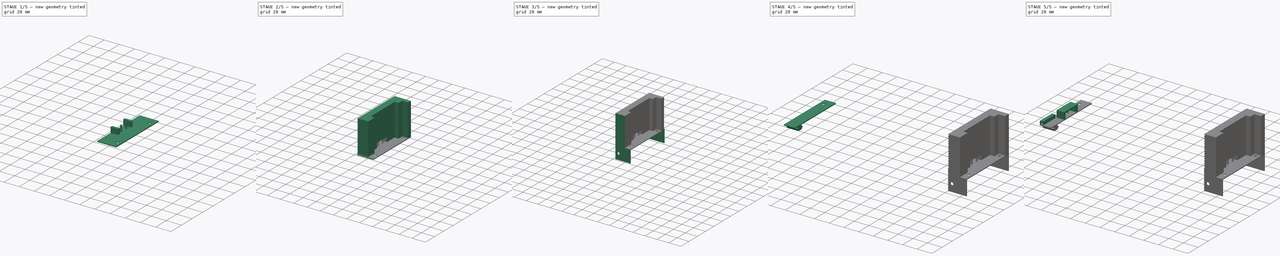
[diagram: build sequence overview — one tinted view per stage of 5, left to right]
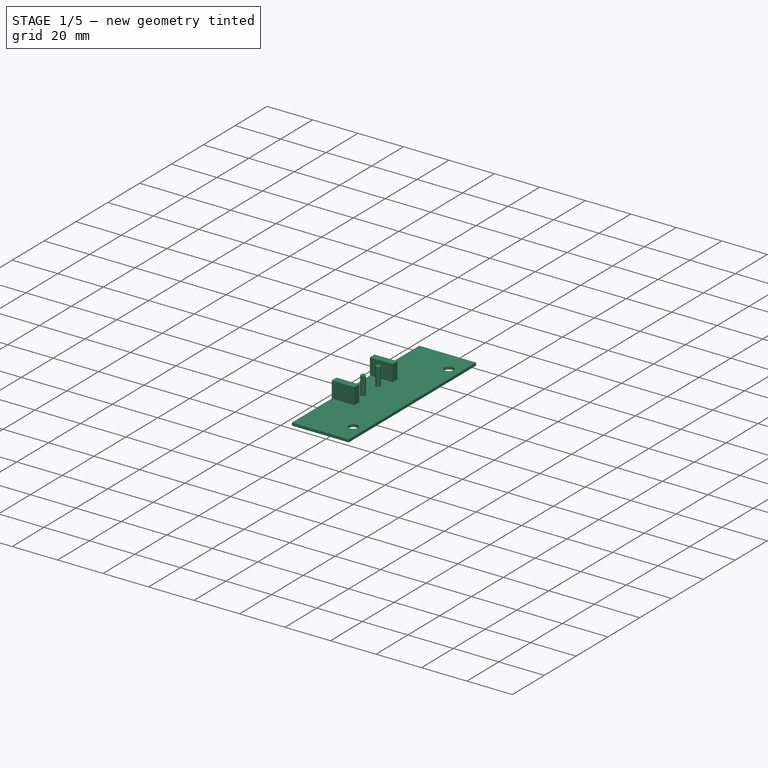
[diagram: stage 1 of 5 — iso view after this stage's code; geometry added in this stage tinted green]
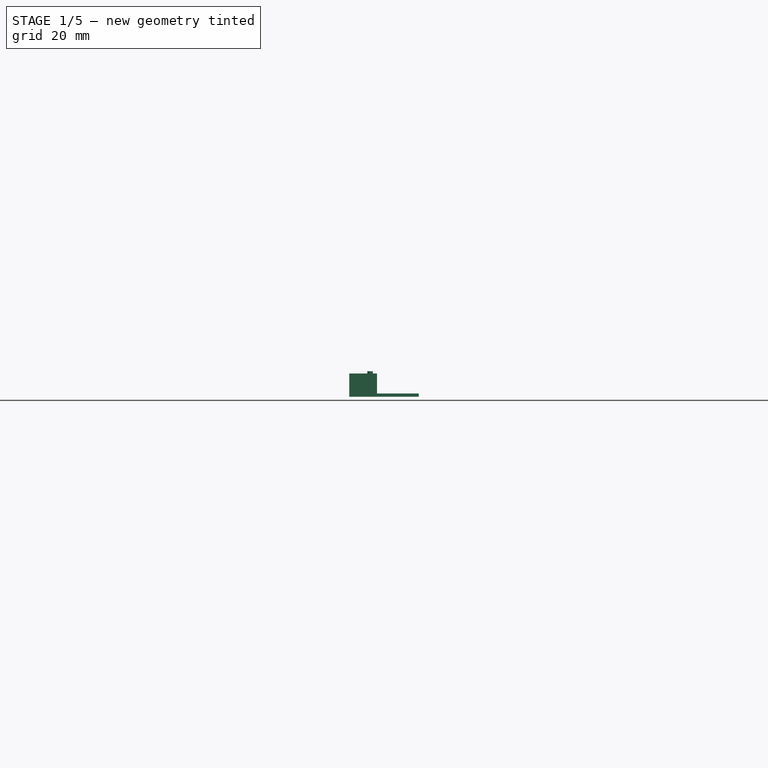
[diagram: stage 1 of 5 — front view after this stage's code; geometry added in this stage tinted green]
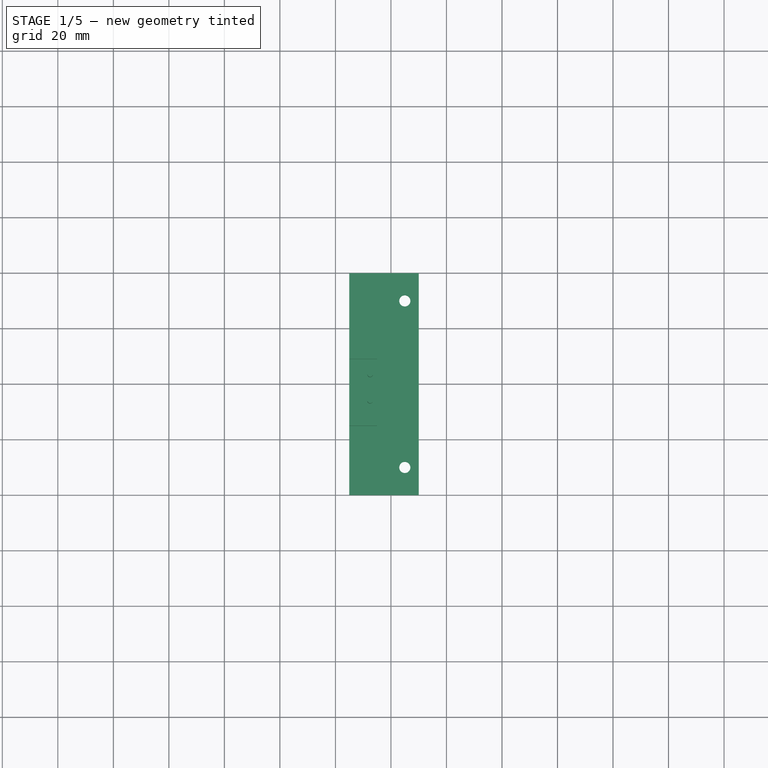
[diagram: stage 1 of 5 — top view after this stage's code; geometry added in this stage tinted green]
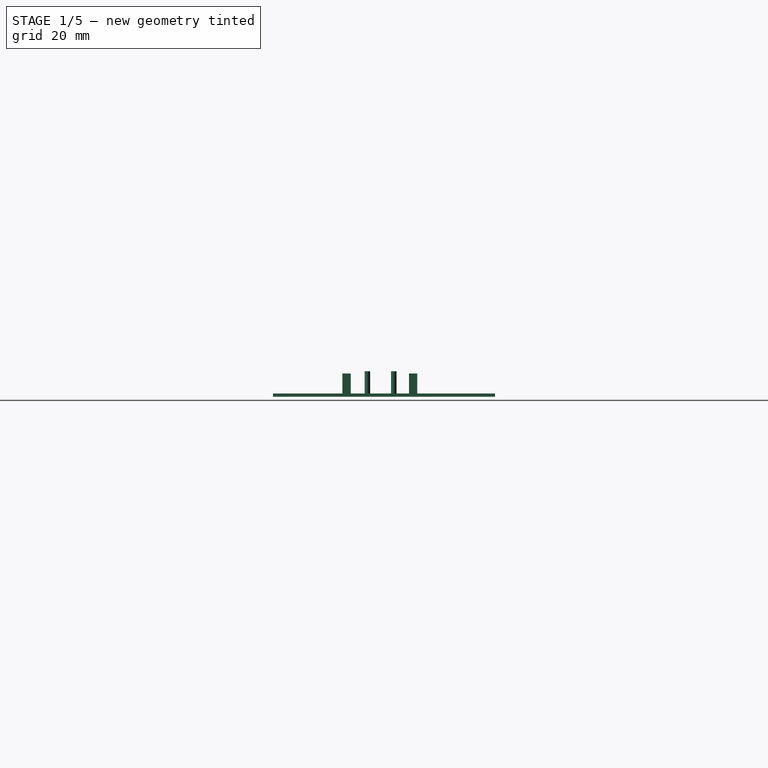
[diagram: stage 1 of 5 — right view after this stage's code; geometry added in this stage tinted green]
FCSTD DOCUMENT  (FreeCAD 1.0R39319 (Git))
Label: Limit Switch
License: All rights reserved
LicenseURL: https://en.wikipedia.org/wiki/All_rights_reserved
objects: Sketcher::SketchObject×17, PartDesign::Pad×15, Part::Feature×6, PartDesign::Pocket×4, PartDesign::Body×2, PartDesign::ShapeBinder×2, PartDesign::SubShapeBinder×1, PartDesign::Plane×1, PartDesign::Mirrored×1
note: 105 computed .brp shape members not serialized (recipe doc carries the construction recipe); baked Part::Feature solids carry a one-line shape summary decoded from their .brp

FEATURE [Part::Feature] Part__Feature003  label="Microswitch Omron SS-5GL-F v2 copy"
  Placement = pos=(235.5,48.5,1.5) rot=(0,0,-1;4.71239rad)
  shape: bbox 18.45 x 19.88 x 6.4 mm, 66 faces (baked)
FEATURE [Part::Feature] Part__Feature004  label="Slider T-Nut for 2020 - M5 v1 copy"
  Placement = pos=(250,75,-5.5) rot=(0.57735,-0.57735,-0.57735;2.0944rad)
  shape: bbox 10.01 x 10.01 x 5.013 mm, 31 faces (baked)
FEATURE [Sketcher::SketchObject] Sketch005
  ArcFitTolerance = 1e-06
  AttachmentOffset = pos=(0,0,250) rot=(0,0,1;0rad)
  AttachmentSupport = -> [YZ_Plane001]
  FullyConstrained = true
  MakeInternals = false
  MapMode = 5
  Placement = pos=(250,0,0) rot=(0.57735,0.57735,0.57735;2.0944rad)
  sketch-geometry (4):
    g0: LineSegment StartX=0 StartY=0 StartZ=0 EndX=0 EndY=1.2 EndZ=0
    g1: LineSegment StartX=0 StartY=1.2 StartZ=0 EndX=80 EndY=1.2 EndZ=0
    g2: LineSegment StartX=80 StartY=1.2 StartZ=0 EndX=80 EndY=0 EndZ=0
    g3: LineSegment StartX=80 StartY=0 StartZ=0 EndX=0 EndY=0 EndZ=0
  constraints (11):
    c: Coincident(g-1,g0)
    c: PointOnObject(g0,g-2)
    c: Coincident(g0,g1)
    c: Horizontal(g1)
    c: Coincident(g1,g2)
    c: PointOnObject(g2,g-1)
    c: Coincident(g2,g3)
    c: Coincident(g3,g0)
    c: Vertical(g2)
    c: DistanceY(g0,g0) = 1.2
    c: DistanceX(g1,g1) = 80
FEATURE [PartDesign::Pad] Pad003
  Direction = (1,0,0)
  Length = 25
  Length2 = 10
  Placement = pos=(0,0,0) rot=(1,1,1;2.0944rad)
  Profile = -> Sketch005
  ReferenceAxis = -> Sketch005 [N_Axis]
  Refine = true
  Reversed = true
  Suppressed = false
  Type = 0
FEATURE [Part::Feature] Part__Feature005  label="Slider T-Nut for 2020 - M5 v1 copy001"
  Placement = pos=(250,15,-5.5) rot=(0.57735,-0.57735,-0.57735;2.0944rad)
  shape: bbox 10.01 x 10.01 x 5.013 mm, 31 faces (baked)
FEATURE [Sketcher::SketchObject] Sketch006
  ArcFitTolerance = 1e-06
  AttachmentSupport = -> [Pad003]
  ExternalGeometry = -> [Pad003]
  FullyConstrained = true
  MakeInternals = false
  MapMode = 5
  Placement = pos=(-1e-16,4e-16,1.2) rot=(0,0,-1;1.5708rad)
  sketch-geometry (2):
    g0: Circle CenterX=-70 CenterY=245 CenterZ=0 NormalX=0 NormalY=0 NormalZ=1 AngleXU=0 Radius=2
    g1: Circle CenterX=-10 CenterY=245 CenterZ=0 NormalX=0 NormalY=0 NormalZ=1 AngleXU=0 Radius=2
  constraints (6):
    c: Diameter(g0) = 4
    c: Diameter(g1) = 4
    c: DistanceX(g-3,g0) = 10
    c: DistanceY(g0,g-3) = 5
    c: DistanceX(g1,g-1) = 10
    c: DistanceY(g1,g-4) = 5
FEATURE [PartDesign::Pocket] Pocket001
  BaseFeature = -> Pad003
  Direction = (0,0,-1)
  Length = 5
  Length2 = 5
  Placement = pos=(0,0,0) rot=(1,1,1;2.0944rad)
  Profile = -> Sketch006
  ReferenceAxis = -> Sketch006 [N_Axis]
  Refine = true
  Suppressed = false
  Type = 1
FEATURE [Sketcher::SketchObject] Sketch007
  ArcFitTolerance = 1e-06
  AttachmentSupport = -> [Pocket001]
  ExternalGeometry = -> [Pocket001]
  FullyConstrained = true
  MakeInternals = false
  MapMode = 5
  Placement = pos=(-3e-16,5e-16,1.2) rot=(0,0,-1;1.5708rad)
  sketch-geometry (2):
    g0: Circle CenterX=-43.5 CenterY=232.5 CenterZ=0 NormalX=0 NormalY=0 NormalZ=1 AngleXU=0 Radius=1
    g1: Circle CenterX=-34 CenterY=232.5 CenterZ=0 NormalX=0 NormalY=0 NormalZ=1 AngleXU=0 Radius=1
  constraints (6):
    c: Diameter(g0) = 2
    c: Diameter(g1) = 2
    c: Horizontal(g0,g1)
    c: DistanceX(g-3,g0) = 36.5
    c: DistanceX(g0,g1) = 9.5
    c: DistanceY(g-4,g0) = 7.5
FEATURE [PartDesign::Pad] Pad004
  BaseFeature = -> Pocket001
  Direction = (0,0,1)
  Length = 8
  Length2 = 10
  Placement = pos=(0,0,0) rot=(1,1,1;2.0944rad)
  Profile = -> Sketch007
  ReferenceAxis = -> Sketch007 [N_Axis]
  Refine = true
  Suppressed = false
  Type = 0
FEATURE [PartDesign::Body] Body  label="Limit Switch Holder"
  AllowCompound = false
  Group = -> [Sketch,Binder,Pad,Sketch001,Pocket,Sketch002,Sketch003,Pad001,Sketch004,Pad002,Sketch008,Pad005,Sketch009,Pad006]
  Origin = -> Origin
  Tip = -> Pad006
FEATURE [Sketcher::SketchObject] Sketch010
  ArcFitTolerance = 1e-06
  AttachmentSupport = -> [Pad004]
  ExternalGeometry = -> [Pad004]
  FullyConstrained = true
  MakeInternals = false
  MapMode = 5
  Placement = pos=(-4e-16,7e-16,1.2) rot=(0,0,-1;1.5708rad)
  sketch-geometry (8):
    g0: LineSegment StartX=-49 StartY=225 StartZ=0 EndX=-49 EndY=235 EndZ=0
    g1: LineSegment StartX=-49 StartY=235 StartZ=0 EndX=-52 EndY=235 EndZ=0
    g2: LineSegment StartX=-52 StartY=235 StartZ=0 EndX=-52 EndY=225 EndZ=0
    g3: LineSegment StartX=-52 StartY=225 StartZ=0 EndX=-49 EndY=225 EndZ=0
    g4: LineSegment StartX=-28 StartY=225 StartZ=0 EndX=-25 EndY=225 EndZ=0
    g5: LineSegment StartX=-25 StartY=225 StartZ=0 EndX=-25 EndY=235 EndZ=0
    g6: LineSegment StartX=-25 StartY=235 StartZ=0 EndX=-28 EndY=235 EndZ=0
    g7: LineSegment StartX=-28 StartY=235 StartZ=0 EndX=-28 EndY=225 EndZ=0
  constraints (24):
    c: Coincident(g0,g1)
    c: Coincident(g1,g2)
    c: Coincident(g2,g3)
    c: Coincident(g3,g0)
    c: Vertical(g0)
    c: Vertical(g2)
    c: Horizontal(g1)
    c: Horizontal(g3)
    c: Distance(g0,g2) = 3
    c: Distance(g1,g3) = 10
    c: PointOnObject(g0,g-3)
    c: Coincident(g4,g5)
    c: Coincident(g5,g6)
    c: Coincident(g6,g7)
    c: Coincident(g7,g4)
    c: Horizontal(g4)
    c: Horizontal(g6)
    c: Vertical(g5)
    c: Vertical(g7)
    c: Distance(g5,g7) = 3
    c: Distance(g4,g6) = 10
    c: PointOnObject(g4,g-3)
    c: DistanceX(g0,g4) = 21
    c: DistanceX(g4,g-1) = 25
FEATURE [PartDesign::Pad] Pad007
  BaseFeature = -> Pad004
  Direction = (0,0,1)
  Length = 7.2
  Length2 = 10
  Placement = pos=(0,0,0) rot=(1,1,1;2.0944rad)
  Profile = -> Sketch010
  ReferenceAxis = -> Sketch010 [N_Axis]
  Refine = true
  Suppressed = false
  Type = 0
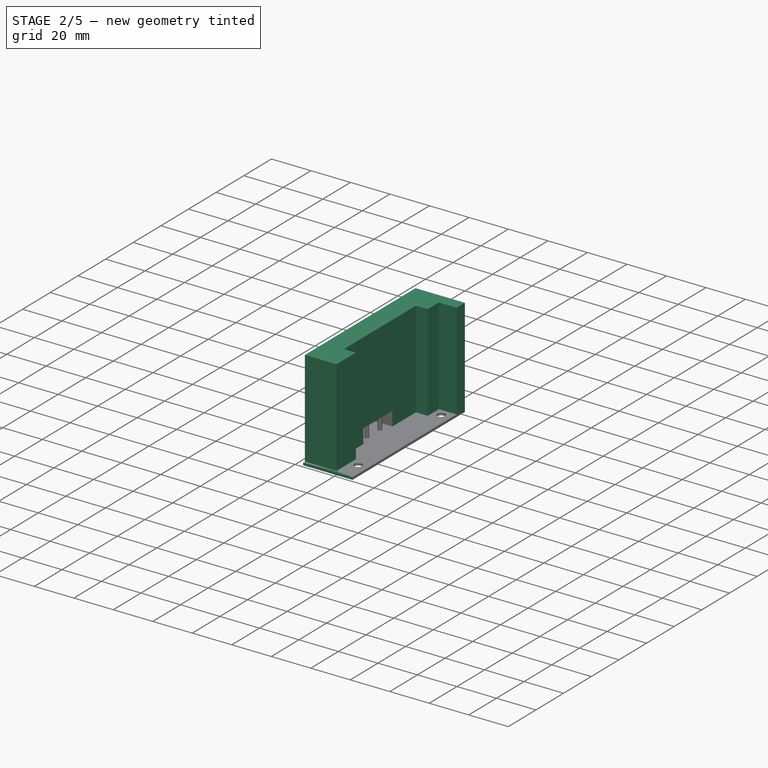
[diagram: stage 2 of 5 — iso view after this stage's code; geometry added in this stage tinted green]
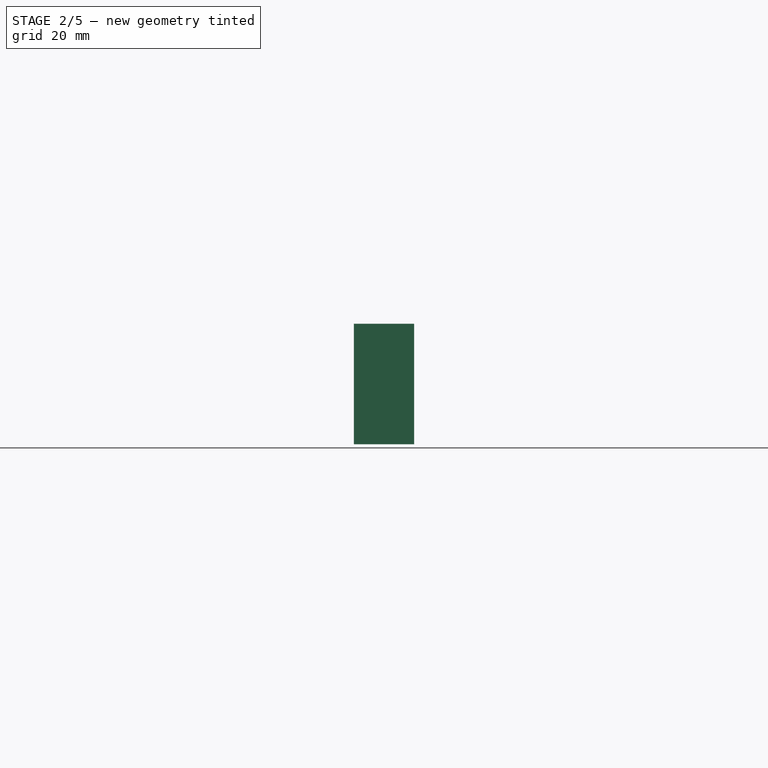
[diagram: stage 2 of 5 — front view after this stage's code; geometry added in this stage tinted green]
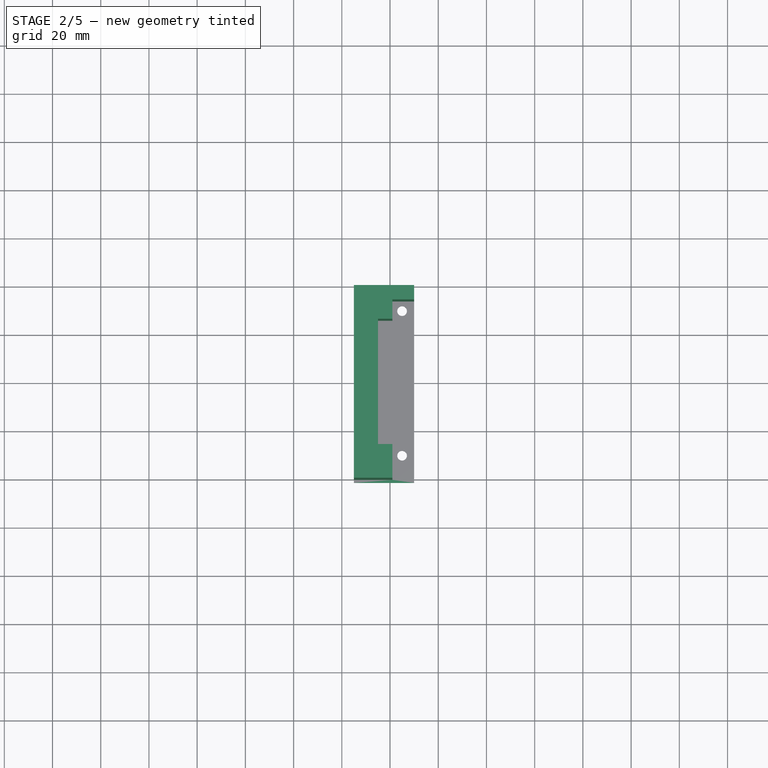
[diagram: stage 2 of 5 — top view after this stage's code; geometry added in this stage tinted green]
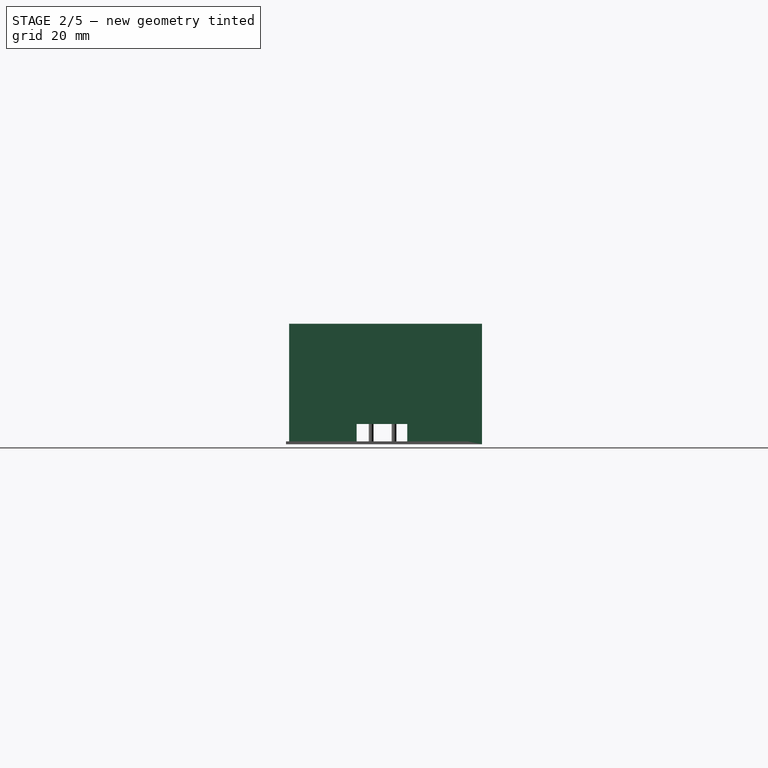
[diagram: stage 2 of 5 — right view after this stage's code; geometry added in this stage tinted green]
FEATURE [Sketcher::SketchObject] Sketch011
  ArcFitTolerance = 1e-06
  AttachmentSupport = -> [Pad007]
  ExternalGeometry = -> [Pad007]
  FullyConstrained = true
  MakeInternals = false
  MapMode = 5
  Placement = pos=(-9e-16,9e-16,8.4) rot=(0,0,-1;1.5708rad)
  sketch-geometry (4):
    g0: LineSegment StartX=-25 StartY=235 StartZ=0 EndX=-52 EndY=235 EndZ=0
    g1: LineSegment StartX=-52 StartY=235 StartZ=0 EndX=-52 EndY=225 EndZ=0
    g2: LineSegment StartX=-52 StartY=225 StartZ=0 EndX=-25 EndY=225 EndZ=0
    g3: LineSegment StartX=-25 StartY=225 StartZ=0 EndX=-25 EndY=235 EndZ=0
  constraints (10):
    c: Coincident(g0,g1)
    c: Coincident(g1,g2)
    c: Coincident(g2,g3)
    c: Coincident(g3,g0)
    c: Horizontal(g0)
    c: Horizontal(g2)
    c: Vertical(g1)
    c: Vertical(g3)
    c: Coincident(g0,g-3)
    c: Coincident(g1,g-4)
FEATURE [PartDesign::Pad] Pad008
  BaseFeature = -> Pad007
  Direction = (0,0,1)
  Length = 2
  Length2 = 10
  Placement = pos=(0,0,0) rot=(1,1,1;2.0944rad)
  Profile = -> Sketch011
  ReferenceAxis = -> Sketch011 [N_Axis]
  Refine = true
  Suppressed = false
  Type = 0
FEATURE [Sketcher::SketchObject] Sketch012
  ArcFitTolerance = 1e-06
  AttachmentSupport = -> [Pad008]
  ExternalGeometry = -> [Pad008]
  FullyConstrained = true
  MakeInternals = false
  MapMode = 5
  Placement = pos=(-7e-16,9e-16,1.2) rot=(0,0,-1;1.5708rad)
  sketch-geometry (14):
    g0: LineSegment StartX=-80 StartY=250 StartZ=0 EndX=-74 EndY=250 EndZ=0
    g1: LineSegment StartX=-74 StartY=250 StartZ=0 EndX=-74 EndY=241 EndZ=0
    g2: LineSegment StartX=-74 StartY=241 StartZ=0 EndX=-66 EndY=241 EndZ=0
    g3: LineSegment StartX=-66 StartY=241 StartZ=0 EndX=-66 EndY=235 EndZ=0
    g4: LineSegment StartX=-66 StartY=235 StartZ=0 EndX=-52 EndY=235 EndZ=0
    g5: LineSegment StartX=-52 StartY=235 StartZ=0 EndX=-52 EndY=225 EndZ=0
    g6: LineSegment StartX=-52 StartY=225 StartZ=0 EndX=-80 EndY=225 EndZ=0
    g7: LineSegment StartX=-80 StartY=225 StartZ=0 EndX=-80 EndY=250 EndZ=0
    g8: LineSegment StartX=-14 StartY=241 StartZ=0 EndX=-14 EndY=235 EndZ=0
    g9: LineSegment StartX=-14 StartY=235 StartZ=0 EndX=-25 EndY=235 EndZ=0
    g10: LineSegment StartX=-25 StartY=235 StartZ=0 EndX=-25 EndY=225 EndZ=0
    g11: LineSegment StartX=-25 StartY=225 StartZ=0 EndX=2.984e-13 EndY=225 EndZ=0
    g12: LineSegment StartX=-14 StartY=241 StartZ=0 EndX=3.002e-13 EndY=241 EndZ=0
    g13: LineSegment StartX=3e-13 StartY=241 StartZ=0 EndX=3e-13 EndY=225 EndZ=0
  constraints (35):
    c: Coincident(g-5,g0)
    c: PointOnObject(g0,g-5)
    c: Coincident(g0,g1)
    c: Vertical(g1)
    c: Coincident(g1,g2)
    c: Horizontal(g2)
    c: Coincident(g2,g3)
    c: Coincident(g3,g4)
    c: Coincident(g4,g-3)
    c: Horizontal(g4)
    c: Coincident(g4,g5)
    c: Coincident(g5,g-6)
    c: Coincident(g5,g6)
    c: Coincident(g6,g-6)
    c: Coincident(g6,g7)
    c: Coincident(g7,g0)
    c: Vertical(g8)
    c: Coincident(g8,g9)
    c: Coincident(g9,g-4)
    c: Horizontal(g9)
    c: Coincident(g9,g10)
    c: Coincident(g10,g-7)
    c: Coincident(g10,g11)
    c: Coincident(g8,g12)
    c: Horizontal(g12)
    c: Coincident(g13,g12)
    c: Coincident(g13,g11)
    c: Vertical(g13)
    c: Coincident(g11,g-7)
    c: Vertical(g3)
    c: Distance(g-8,g2) = 4
    c: Distance(g-8,g3) = 4
    c: Distance(g-8,g1) = 4
    c: Distance(g-9,g12) = 4
    c: Distance(g-9,g8) = 4
FEATURE [PartDesign::Pad] Pad009
  BaseFeature = -> Pad008
  Direction = (-1.4e-15,0,1)
  Length = 9
  Length2 = 10
  Placement = pos=(0,0,0) rot=(1,1,1;2.0944rad)
  Profile = -> Sketch012
  ReferenceAxis = -> Sketch012 [N_Axis]
  Refine = true
  Suppressed = false
  Type = 3
  UpToFace = -> Pad008 [Face14]
FEATURE [PartDesign::Pad] Pad010
  BaseFeature = -> Pad009
  Direction = (-6e-16,1e-16,1)
  Length = 39.6
  Length2 = 10
  Placement = pos=(0,0,0) rot=(1,1,1;2.0944rad)
  Profile = -> Pad009 [Face20]
  Refine = true
  Suppressed = false
  Type = 0
FEATURE [Sketcher::SketchObject] Sketch013
  ArcFitTolerance = 1e-06
  AttachmentSupport = -> [Pad010]
  ExternalGeometry = -> [Pad010]
  FullyConstrained = true
  MakeInternals = false
  MapMode = 5
  Placement = pos=(0,-1.388e-13,0) rot=(0.57735,0.57735,-0.57735;2.0944rad)
  sketch-geometry (4):
    g0: LineSegment StartX=-1.2 StartY=250 StartZ=0 EndX=-1.2 EndY=225 EndZ=0
    g1: LineSegment StartX=-1.2 StartY=225 StartZ=0 EndX=0 EndY=225 EndZ=0
    g2: LineSegment StartX=0 StartY=225 StartZ=0 EndX=0 EndY=250 EndZ=0
    g3: LineSegment StartX=0 StartY=250 StartZ=0 EndX=-1.2 EndY=250 EndZ=0
  constraints (10):
    c: Coincident(g0,g1)
    c: Coincident(g1,g2)
    c: Coincident(g2,g3)
    c: Coincident(g3,g0)
    c: Vertical(g0)
    c: Vertical(g2)
    c: Horizontal(g1)
    c: Horizontal(g3)
    c: Coincident(g0,g-3)
    c: Coincident(g1,g-4)
FEATURE [PartDesign::Pad] Pad011
  BaseFeature = -> Pad010
  Direction = (0,-1,0)
  Length = 1.3
  Length2 = 10
  Placement = pos=(0,0,0) rot=(1,1,1;2.0944rad)
  Profile = -> Sketch013
  ReferenceAxis = -> Sketch013 [N_Axis]
  Refine = true
  Suppressed = false
  Type = 0
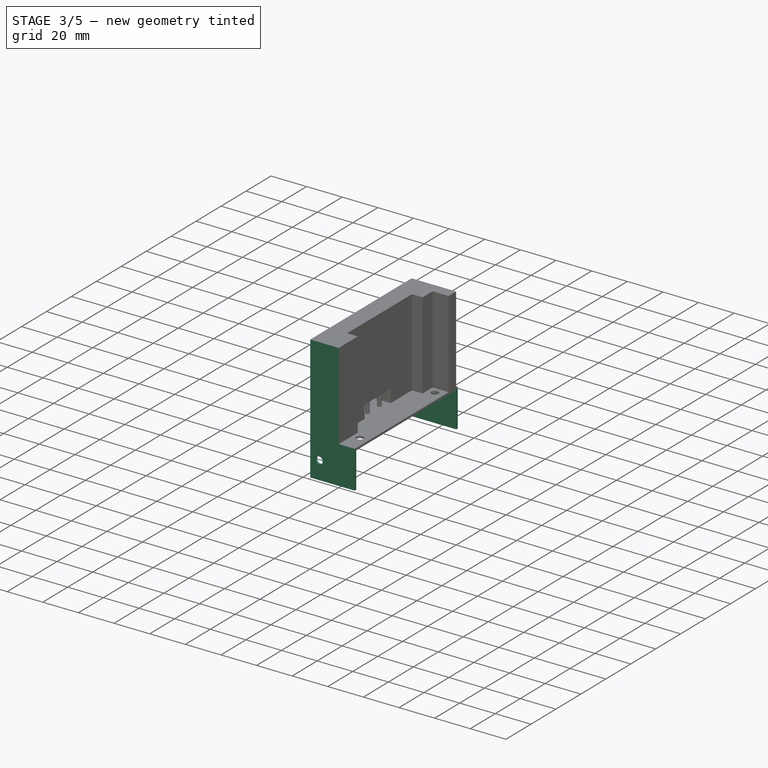
[diagram: stage 3 of 5 — iso view after this stage's code; geometry added in this stage tinted green]
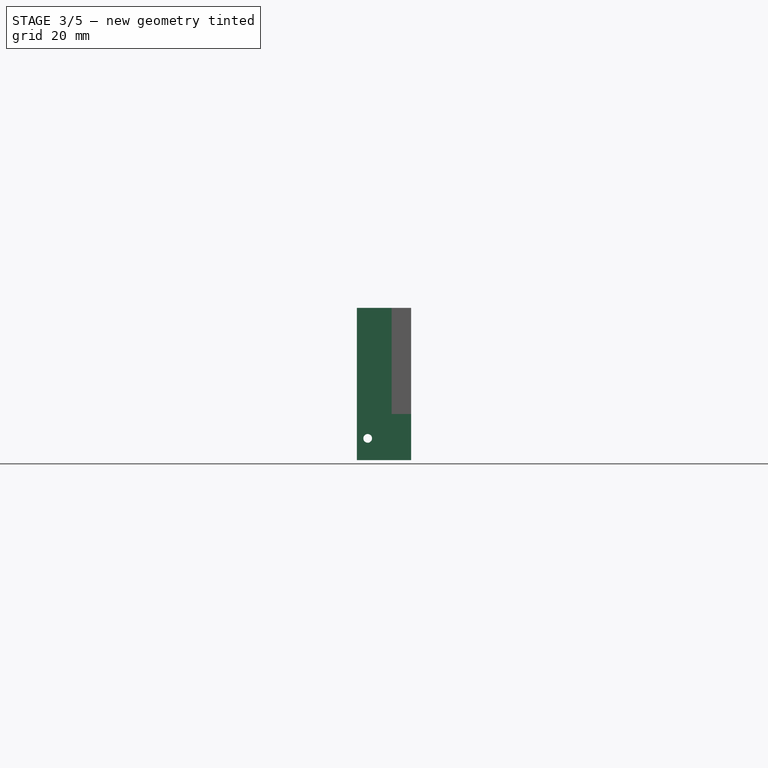
[diagram: stage 3 of 5 — front view after this stage's code; geometry added in this stage tinted green]
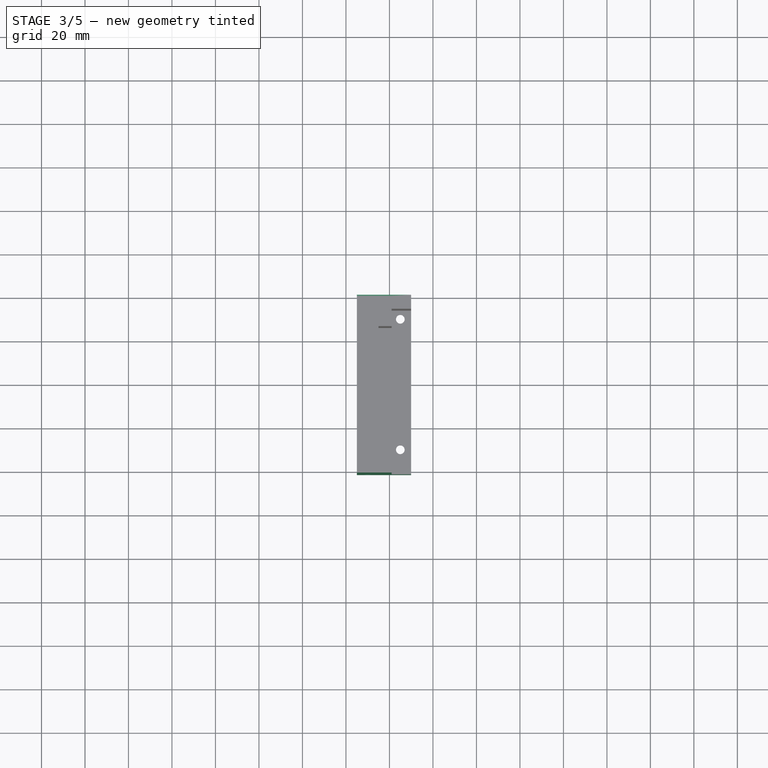
[diagram: stage 3 of 5 — top view after this stage's code; geometry added in this stage tinted green]
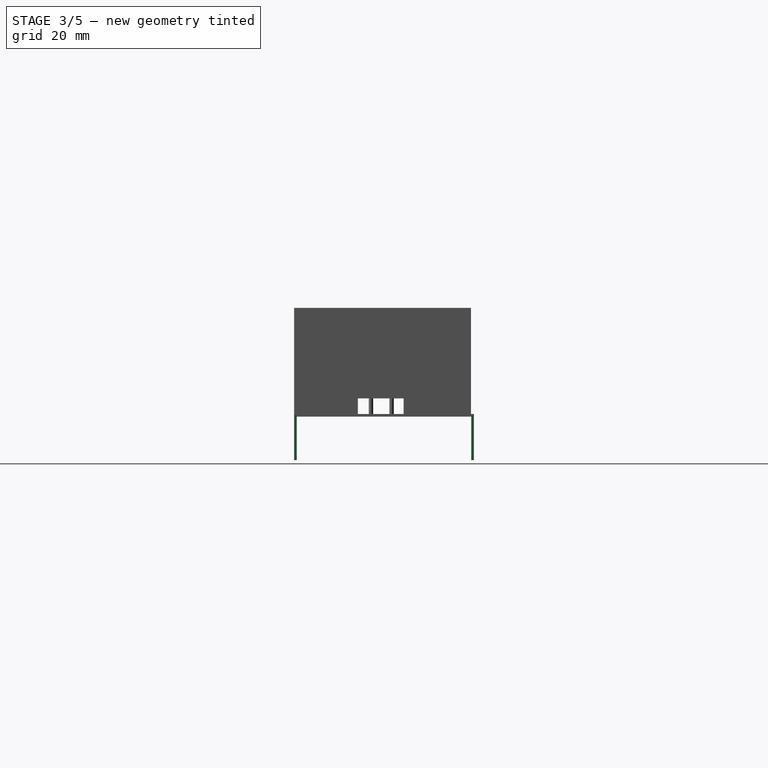
[diagram: stage 3 of 5 — right view after this stage's code; geometry added in this stage tinted green]
FEATURE [Sketcher::SketchObject] Sketch014
  ArcFitTolerance = 1e-06
  AttachmentSupport = -> [Pad011]
  ExternalGeometry = -> [Pad011]
  FullyConstrained = true
  MakeInternals = false
  MapMode = 5
  Placement = pos=(0,0,-2.45e-14) rot=(0.707107,0.707107,0;3.14159rad)
  sketch-geometry (4):
    g0: LineSegment StartX=-1.3 StartY=250 StartZ=0 EndX=-1.3 EndY=225 EndZ=0
    g1: LineSegment StartX=-1.3 StartY=225 StartZ=0 EndX=-0.1 EndY=225 EndZ=0
    g2: LineSegment StartX=-0.1 StartY=225 StartZ=0 EndX=-0.1 EndY=250 EndZ=0
    g3: LineSegment StartX=-0.1 StartY=250 StartZ=0 EndX=-1.3 EndY=250 EndZ=0
  constraints (11):
    c: Coincident(g0,g1)
    c: Coincident(g1,g2)
    c: Coincident(g2,g3)
    c: Coincident(g3,g0)
    c: Vertical(g0)
    c: Vertical(g2)
    c: Horizontal(g1)
    c: Horizontal(g3)
    c: Coincident(g0,g-3)
    c: PointOnObject(g1,g-4)
    c: DistanceX(g3,g3) = 1.2
FEATURE [PartDesign::Pad] Pad012
  BaseFeature = -> Pad011
  Direction = (0,-2.1e-15,-1)
  Length = 20
  Length2 = 10
  Placement = pos=(0,0,0) rot=(1,1,1;2.0944rad)
  Profile = -> Sketch014
  ReferenceAxis = -> Sketch014 [N_Axis]
  Refine = true
  Suppressed = false
  Type = 0
FEATURE [Sketcher::SketchObject] Sketch015
  ArcFitTolerance = 1e-06
  AttachmentSupport = -> [Pad012]
  ExternalGeometry = -> [Pad012]
  FullyConstrained = true
  MakeInternals = false
  MapMode = 5
  Placement = pos=(-6e-16,-1.3,2.7e-15) rot=(0.57735,0.57735,-0.57735;2.0944rad)
  sketch-geometry (1):
    g0: Circle CenterX=10 CenterY=230 CenterZ=0 NormalX=0 NormalY=0 NormalZ=1 AngleXU=0 Radius=2
  constraints (3):
    c: Diameter(g0) = 4
    c: DistanceY(g-4,g0) = 5
    c: DistanceX(g0,g-4) = 10
FEATURE [PartDesign::Pocket] Pocket002
  BaseFeature = -> Pad012
  Direction = (1e-16,1,-1.9e-15)
  Length = 5
  Length2 = 5
  Placement = pos=(0,0,0) rot=(1,1,1;2.0944rad)
  Profile = -> Sketch015
  ReferenceAxis = -> Sketch015 [N_Axis]
  Refine = true
  Suppressed = false
  Type = 1
FEATURE [PartDesign::ShapeBinder] CopyPart__Feature
  Placement = pos=(250,40,-20) rot=(0,-1,0;1.5708rad)
  TraceSupport = false
FEATURE [PartDesign::ShapeBinder] CopyPart__Feature001
  Placement = pos=(250,40,-20) rot=(0,-1,0;1.5708rad)
  TraceSupport = false
FEATURE [PartDesign::Plane] DatumPlane
  AttachmentOffset = pos=(0,0,0) rot=(0,1,0;1.5708rad)
  AttachmentSupport = -> [CopyPart__Feature,CopyPart__Feature001]
  Length = 119.348
  MapMode = 45
  Placement = pos=(125,40,-37.2197) rot=(-0.57735,0.57735,0.57735;2.0944rad)
  ResizeMode = 0
  Width = 306.148
FEATURE [PartDesign::Mirrored] Mirrored
  BaseFeature = -> Pocket002
  MirrorPlane = -> DatumPlane
  Originals = -> [Pad011,Pad012,Pocket002]
  Placement = pos=(0,0,0) rot=(1,1,1;2.0944rad)
  Refine = true
  Suppressed = false
  TransformMode = 0
FEATURE [PartDesign::Pad] Pad013
  BaseFeature = -> Mirrored
  Direction = (-1.6e-15,-1,7e-16)
  Length = 1.3
  Length2 = 10
  Placement = pos=(0,0,0) rot=(1,1,1;2.0944rad)
  Profile = -> Mirrored [Face11]
  Refine = true
  Suppressed = false
  Type = 0
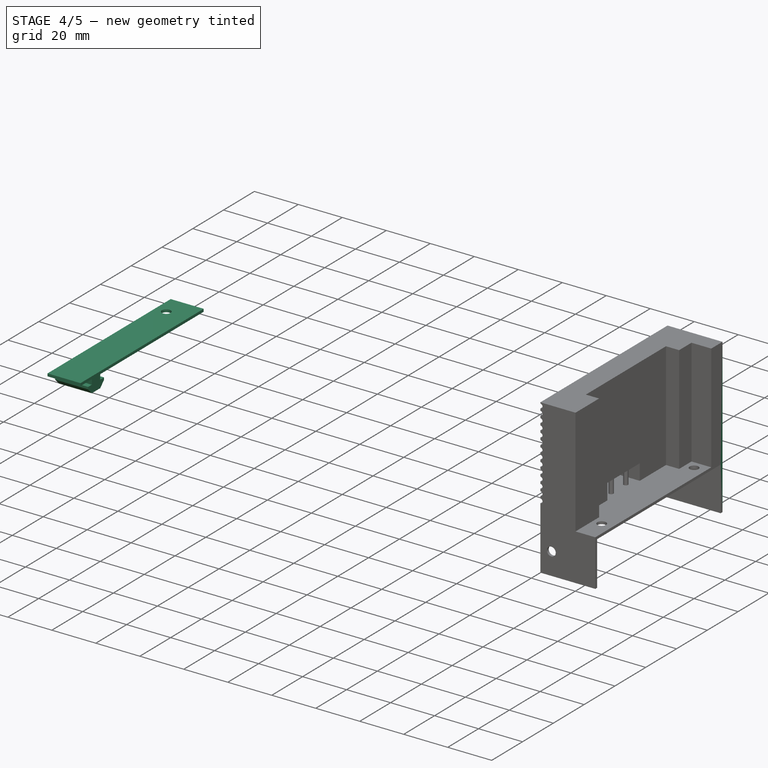
[diagram: stage 4 of 5 — iso view after this stage's code; geometry added in this stage tinted green]
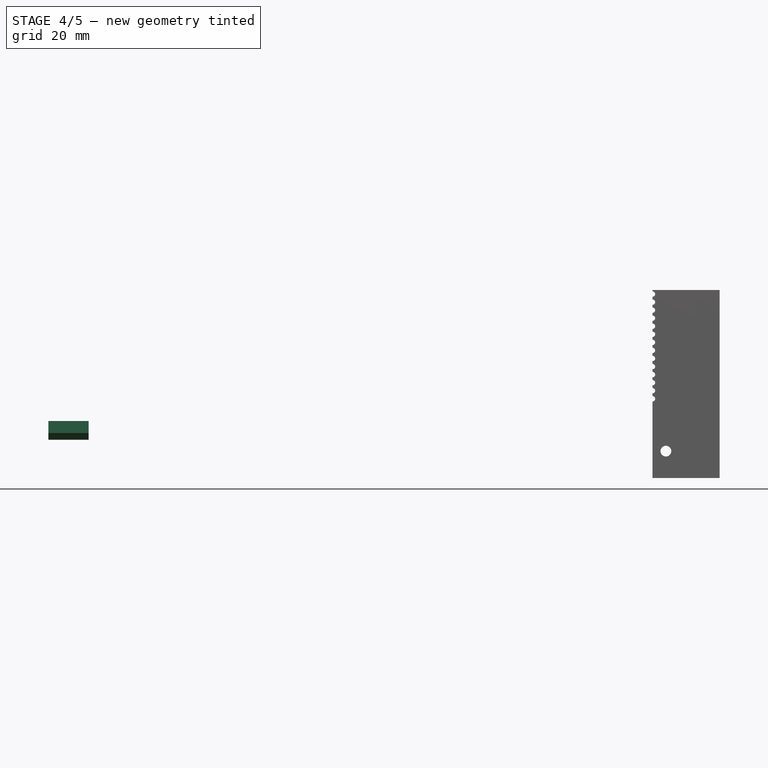
[diagram: stage 4 of 5 — front view after this stage's code; geometry added in this stage tinted green]
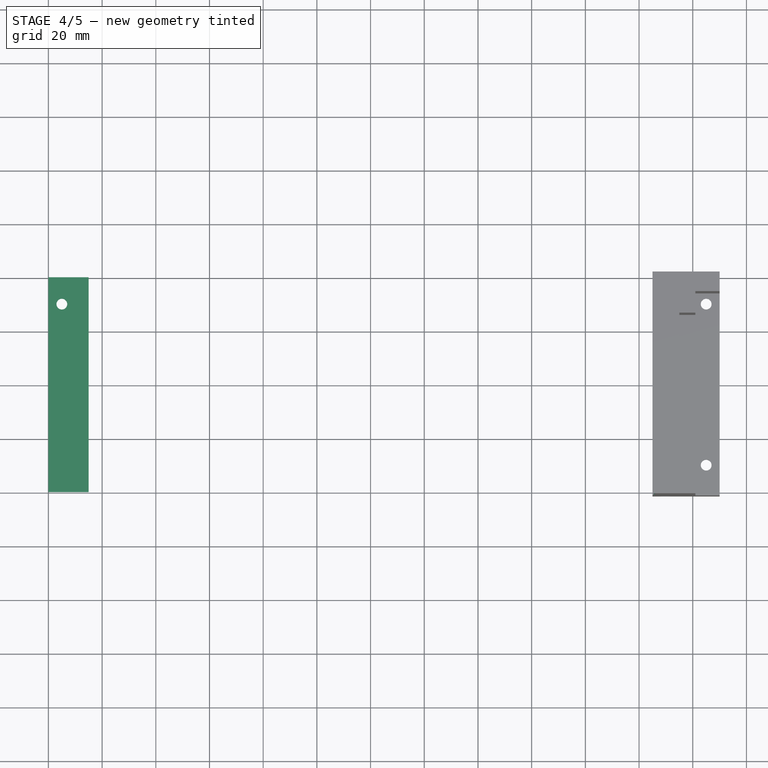
[diagram: stage 4 of 5 — top view after this stage's code; geometry added in this stage tinted green]
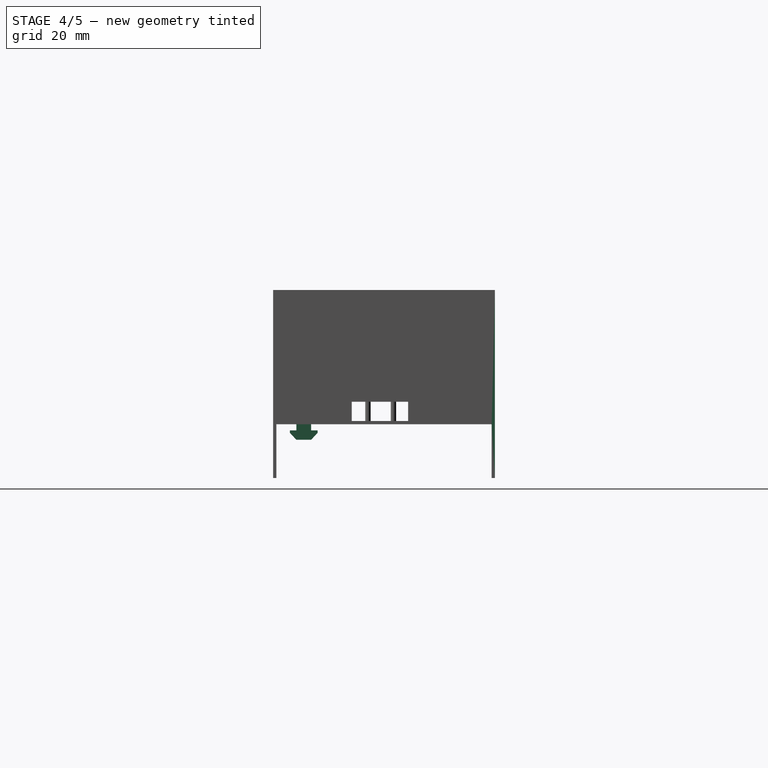
[diagram: stage 4 of 5 — right view after this stage's code; geometry added in this stage tinted green]
FEATURE [Part::Feature] Part__Feature  label="C-Beam 40x80x250 Linear Rail v1"
  Placement = pos=(250,40,-20) rot=(0,1,0;4.71239rad)
  shape: bbox 250 x 80 x 40 mm, 288 faces (baked)
FEATURE [Part::Feature] Part__Feature001  label="Slider T-Nut for 2020 - M5 v3"
  Placement = pos=(10,75,-5.5) rot=(0.57735,-0.57735,-0.57735;2.0944rad)
  shape: bbox 10.01 x 10.01 x 5.013 mm, 31 faces (baked)
FEATURE [Part::Feature] Part__Feature002  label="Microswitch Omron SS-5GL-F v1"
  Placement = pos=(4.5,29,1.5) rot=(0,0,1;4.71239rad)
  shape: bbox 18.45 x 19.88 x 6.4 mm, 66 faces (baked)
FEATURE [PartDesign::SubShapeBinder] Binder
  BindCopyOnChange = 0
  BindMode = 0
  ClaimChildren = false
  Context = -> Body [Binder.]
  Fuse = false
  MakeFace = true
  OffsetFill = false
  OffsetIntersection = false
  OffsetJoinType = 0
  OffsetOpenResult = false
  PartialLoad = false
  Refine = true
  Relative = true
  Support = -> [Part__Feature[Face287]]
  _Version = 2
FEATURE [Sketcher::SketchObject] Sketch
  ArcFitTolerance = 1e-06
  AttachmentSupport = -> [YZ_Plane]
  ExternalGeometry = -> [Binder]
  FullyConstrained = true
  MakeInternals = false
  MapMode = 5
  Placement = pos=(0,0,0) rot=(0.57735,0.57735,0.57735;2.0944rad)
  sketch-geometry (14):
    g0: LineSegment StartX=0 StartY=0 StartZ=0 EndX=7.355 EndY=0 EndZ=0
    g1: LineSegment StartX=7.355 StartY=0 StartZ=0 EndX=7.355 EndY=-2.25 EndZ=0
    g2: LineSegment StartX=7.355 StartY=-2.25 StartZ=0 EndX=4.955 EndY=-2.25 EndZ=0
    g3: LineSegment StartX=4.955 StartY=-2.25 StartZ=0 EndX=4.955 EndY=-3.25 EndZ=0
    g4: LineSegment StartX=4.955 StartY=-3.25 StartZ=0 EndX=7.355 EndY=-5.75 EndZ=0
    g5: LineSegment StartX=7.355 StartY=-5.75 StartZ=0 EndX=12.855 EndY=-5.75 EndZ=0
    g6: LineSegment StartX=12.855 StartY=-5.75 StartZ=0 EndX=15.255 EndY=-3.25 EndZ=0
    g7: LineSegment StartX=15.255 StartY=-3.25 StartZ=0 EndX=15.255 EndY=-2.25 EndZ=0
    g8: LineSegment StartX=15.255 StartY=-2.25 StartZ=0 EndX=12.855 EndY=-2.25 EndZ=0
    g9: LineSegment StartX=12.855 StartY=-2.25 StartZ=0 EndX=12.855 EndY=0 EndZ=0
    g10: LineSegment StartX=12.855 StartY=0 StartZ=0 EndX=80 EndY=0 EndZ=0
    g11: LineSegment StartX=80 StartY=0 StartZ=0 EndX=80 EndY=1.2 EndZ=0
    g12: LineSegment StartX=80 StartY=1.2 StartZ=0 EndX=0 EndY=1.2 EndZ=0
    g13: LineSegment StartX=0 StartY=1.2 StartZ=0 EndX=0 EndY=0 EndZ=0
  constraints (41):
    c: Coincident(g-1,g0)
    c: PointOnObject(g0,g-1)
    c: Coincident(g0,g1)
    c: Vertical(g1)
    c: Coincident(g1,g2)
    c: Horizontal(g2)
    c: Coincident(g2,g3)
    c: Vertical(g3)
    c: Coincident(g3,g4)
    c: Coincident(g4,g5)
    c: Horizontal(g5)
    c: Coincident(g5,g6)
    c: Coincident(g6,g7)
    c: Coincident(g7,g8)
    c: Horizontal(g8)
    c: Coincident(g8,g9)
    c: PointOnObject(g9,g-1)
    c: Vertical(g9)
    c: Vertical(g7)
    c: DistanceY(g1,g1) = 2.25
    c: DistanceY(g3,g3) = 1
    c: DistanceY(g4,g3) = 2.5
    c: DistanceX(g5,g5) = 5.5
    c: Equal(g3,g7)
    c: Equal(g9,g1)
    c: Vertical(g1,g4)
    c: Vertical(g8,g5)
    c: Equal(g6,g4)
    c: Distance(g-3,g1) = 0.75
    c: DistanceX(g2,g2) = 2.4
    c: Coincident(g9,g10)
    c: PointOnObject(g10,g-1)
    c: DistanceX(g-1,g10) = 80
    c: Coincident(g10,g11)
    c: Vertical(g11)
    c: Coincident(g11,g12)
    c: PointOnObject(g12,g-2)
    c: Horizontal(g12)
    c: Coincident(g12,g13)
    c: Coincident(g13,g0)
    c: DistanceY(g10,g11) = 1.2
FEATURE [PartDesign::Pad] Pad
  Direction = (1,0,0)
  Length = 15
  Length2 = 10
  Placement = pos=(0,0,0) rot=(1,1,1;2.0944rad)
  Profile = -> Sketch
  ReferenceAxis = -> Sketch [N_Axis]
  Refine = true
  Suppressed = false
  Type = 0
FEATURE [Sketcher::SketchObject] Sketch001
  ArcFitTolerance = 1e-06
  AttachmentSupport = -> [Pad]
  ExternalGeometry = -> [Pad]
  FullyConstrained = true
  MakeInternals = false
  MapMode = 5
  Placement = pos=(-1e-16,4e-16,1.2) rot=(0,0,-1;1.5708rad)
  sketch-geometry (1):
    g0: Circle CenterX=-70 CenterY=5 CenterZ=0 NormalX=0 NormalY=0 NormalZ=1 AngleXU=0 Radius=2
  constraints (3):
    c: DistanceY(g-3,g0) = 5
    c: DistanceX(g-3,g0) = 10
    c: Diameter(g0) = 4
FEATURE [PartDesign::Pocket] Pocket
  BaseFeature = -> Pad
  Direction = (0,0,-1)
  Length = 5
  Length2 = 5
  Placement = pos=(0,0,0) rot=(1,1,1;2.0944rad)
  Profile = -> Sketch001
  ReferenceAxis = -> Sketch001 [N_Axis]
  Refine = true
  Suppressed = false
  Type = 1
FEATURE [PartDesign::Pad] Pad014
  BaseFeature = -> Pad013
  Direction = (2.1e-15,1,-1.7e-15)
  Length = 1.3
  Length2 = 10
  Placement = pos=(0,0,0) rot=(1,1,1;2.0944rad)
  Profile = -> Pad013 [Face14]
  Refine = true
  Suppressed = false
  Type = 0
FEATURE [Sketcher::SketchObject] Sketch016
  ArcFitTolerance = 1e-06
  AttachmentSupport = -> [Pad014]
  ExternalGeometry = -> [Pad014]
  FullyConstrained = true
  MakeInternals = false
  MapMode = 5
  Placement = pos=(1.976e-13,81.3,-1.026e-12) rot=(0.57735,0.57735,0.57735;4.18879rad)
  sketch-geometry (42):
    g0: Circle CenterX=48.5 CenterY=225 CenterZ=0 NormalX=0 NormalY=0 NormalZ=1 AngleXU=0 Radius=1
    g1: LineSegment [constr] StartX=50 StartY=225 StartZ=0 EndX=48.5 EndY=225 EndZ=0
    g2: LineSegment [constr] StartX=48.5 StartY=225 StartZ=0 EndX=47 EndY=225 EndZ=0
    g3: Circle CenterX=45.5 CenterY=225 CenterZ=0 NormalX=0 NormalY=0 NormalZ=1 AngleXU=0 Radius=1
    g4: LineSegment [constr] StartX=47 StartY=225 StartZ=0 EndX=45.5 EndY=225 EndZ=0
    g5: LineSegment [constr] StartX=45.5 StartY=225 StartZ=0 EndX=44 EndY=225 EndZ=0
    g6: Circle CenterX=42.5 CenterY=225 CenterZ=0 NormalX=0 NormalY=0 NormalZ=1 AngleXU=0 Radius=1
    g7: LineSegment [constr] StartX=44 StartY=225 StartZ=0 EndX=42.5 EndY=225 EndZ=0
    g8: LineSegment [constr] StartX=42.5 StartY=225 StartZ=0 EndX=41 EndY=225 EndZ=0
    g9: Circle CenterX=39.5 CenterY=225 CenterZ=0 NormalX=0 NormalY=0 NormalZ=1 AngleXU=0 Radius=1
    g10: LineSegment [constr] StartX=41 StartY=225 StartZ=0 EndX=39.5 EndY=225 EndZ=0
    g11: LineSegment [constr] StartX=39.5 StartY=225 StartZ=0 EndX=38 EndY=225 EndZ=0
    g12: Circle CenterX=36.5 CenterY=225 CenterZ=0 NormalX=0 NormalY=0 NormalZ=1 AngleXU=0 Radius=1
    g13: LineSegment [constr] StartX=38 StartY=225 StartZ=0 EndX=36.5 EndY=225 EndZ=0
    g14: LineSegment [constr] StartX=36.5 StartY=225 StartZ=0 EndX=35 EndY=225 EndZ=0
    g15: Circle CenterX=33.5 CenterY=225 CenterZ=0 NormalX=0 NormalY=0 NormalZ=1 AngleXU=0 Radius=1
    g16: LineSegment [constr] StartX=35 StartY=225 StartZ=0 EndX=33.5 EndY=225 EndZ=0
    g17: LineSegment [constr] StartX=33.5 StartY=225 StartZ=0 EndX=32 EndY=225 EndZ=0
    g18: Circle CenterX=30.5 CenterY=225 CenterZ=0 NormalX=0 NormalY=0 NormalZ=1 AngleXU=0 Radius=1
    g19: LineSegment [constr] StartX=32 StartY=225 StartZ=0 EndX=30.5 EndY=225 EndZ=0
    g20: LineSegment [constr] StartX=30.5 StartY=225 StartZ=0 EndX=29 EndY=225 EndZ=0
    g21: Circle CenterX=27.5 CenterY=225 CenterZ=0 NormalX=0 NormalY=0 NormalZ=1 AngleXU=0 Radius=1
    g22: LineSegment [constr] StartX=29 StartY=225 StartZ=0 EndX=27.5 EndY=225 EndZ=0
    g23: LineSegment [constr] StartX=27.5 StartY=225 StartZ=0 EndX=26 EndY=225 EndZ=0
    g24: Circle CenterX=24.5 CenterY=225 CenterZ=0 NormalX=0 NormalY=0 NormalZ=1 AngleXU=0 Radius=1
    g25: LineSegment [constr] StartX=26 StartY=225 StartZ=0 EndX=24.5 EndY=225 EndZ=0
    g26: LineSegment [constr] StartX=24.5 StartY=225 StartZ=0 EndX=23 EndY=225 EndZ=0
    g27: Circle CenterX=21.5 CenterY=225 CenterZ=0 NormalX=0 NormalY=0 NormalZ=1 AngleXU=0 Radius=1
    g28: LineSegment [constr] StartX=23 StartY=225 StartZ=0 EndX=21.5 EndY=225 EndZ=0
    g29: LineSegment [constr] StartX=21.5 StartY=225 StartZ=0 EndX=20 EndY=225 EndZ=0
    g30: Circle CenterX=18.5 CenterY=225 CenterZ=0 NormalX=0 NormalY=0 NormalZ=1 AngleXU=0 Radius=1
    g31: LineSegment [constr] StartX=20 StartY=225 StartZ=0 EndX=18.5 EndY=225 EndZ=0
    g32: LineSegment [constr] StartX=18.5 StartY=225 StartZ=0 EndX=17 EndY=225 EndZ=0
    g33: Circle CenterX=15.5 CenterY=225 CenterZ=0 NormalX=0 NormalY=0 NormalZ=1 AngleXU=0 Radius=1
    g34: LineSegment [constr] StartX=17 StartY=225 StartZ=0 EndX=15.5 EndY=225 EndZ=0
    g35: LineSegment [constr] StartX=15.5 StartY=225 StartZ=0 EndX=14 EndY=225 EndZ=0
    g36: Circle CenterX=12.5 CenterY=225 CenterZ=0 NormalX=0 NormalY=0 NormalZ=1 AngleXU=0 Radius=1
    g37: LineSegment [constr] StartX=14 StartY=225 StartZ=0 EndX=12.5 EndY=225 EndZ=0
    g38: LineSegment [constr] StartX=12.5 StartY=225 StartZ=0 EndX=11 EndY=225 EndZ=0
    g39: Circle CenterX=9.5 CenterY=225 CenterZ=0 NormalX=0 NormalY=0 NormalZ=1 AngleXU=0 Radius=1
    g40: LineSegment [constr] StartX=11 StartY=225 StartZ=0 EndX=9.5 EndY=225 EndZ=0
    g41: LineSegment [constr] StartX=9.5 StartY=225 StartZ=0 EndX=8 EndY=225 EndZ=0
  constraints (112):
    c: Diameter(g0) = 2
    c: Coincident(g1,g-3)
    c: Horizontal(g1)
    c: Coincident(g2,g1)
    c: Horizontal(g2)
    c: Equal(g2,g1)
    c: DistanceX(g1,g1) = 1.5
    c: Symmetric(g2,g1,g0)
    c: Equal(g0,g3)
    c: Equal(g0,g6)
    c: Equal(g0,g9)
    c: Equal(g0,g12)
    c: Equal(g0,g15)
    c: Equal(g0,g18)
    c: Equal(g0,g21)
    c: Equal(g0,g24)
    c: Equal(g0,g27)
    c: Equal(g0,g30)
    c: Equal(g0,g33)
    c: Equal(g0,g36)
    c: Equal(g0,g39)
    c: Horizontal(g4)
    c: Horizontal(g7)
    c: Horizontal(g10)
    c: Horizontal(g13)
    c: Horizontal(g16)
    c: Horizontal(g19)
    c: Horizontal(g22)
    c: Horizontal(g25)
    c: Horizontal(g28)
    c: Horizontal(g31)
    c: Horizontal(g34)
    c: Horizontal(g37)
    c: Horizontal(g40)
    c: Coincident(g5,g4)
    c: Coincident(g8,g7)
    c: Coincident(g11,g10)
    c: Coincident(g14,g13)
    c: Coincident(g17,g16)
    c: Coincident(g20,g19)
    c: Coincident(g23,g22)
    c: Coincident(g26,g25)
    c: Coincident(g29,g28)
    c: Coincident(g32,g31)
    c: Coincident(g35,g34)
    c: Coincident(g38,g37)
    c: Coincident(g41,g40)
    c: Horizontal(g5)
    c: Horizontal(g8)
    c: Horizontal(g11)
    c: Horizontal(g14)
    c: Horizontal(g17)
    c: Horizontal(g20)
    c: Horizontal(g23)
    c: Horizontal(g26)
    c: Horizontal(g29)
    c: Horizontal(g32)
    c: Horizontal(g35)
    c: Horizontal(g38)
    c: Horizontal(g41)
    c: Equal(g5,g4)
    c: Equal(g8,g7)
    c: Equal(g11,g10)
    c: Equal(g14,g13)
    c: Equal(g17,g16)
    c: Equal(g20,g19)
    c: Equal(g23,g22)
    c: Equal(g26,g25)
    c: Equal(g29,g28)
    c: Equal(g32,g31)
    c: Equal(g35,g34)
    c: Equal(g38,g37)
    c: Equal(g41,g40)
    c: Equal(g1,g4)
    c: Equal(g1,g7)
    c: Equal(g1,g10)
    c: Equal(g1,g13)
    c: Equal(g1,g16)
    c: Equal(g1,g19)
    c: Equal(g1,g22)
    c: Equal(g1,g25)
    c: Equal(g1,g28)
    c: Equal(g1,g31)
    c: Equal(g1,g34)
    c: Equal(g1,g37)
    c: Equal(g1,g40)
    c: Symmetric(g5,g4,g3)
    c: Symmetric(g8,g7,g6)
    c: Symmetric(g11,g10,g9)
    c: Symmetric(g14,g13,g12)
    c: Symmetric(g17,g16,g15)
    c: Symmetric(g20,g19,g18)
    c: Symmetric(g23,g22,g21)
    c: Symmetric(g26,g25,g24)
    c: Symmetric(g29,g28,g27)
    c: Symmetric(g32,g31,g30)
    c: Symmetric(g35,g34,g33)
    c: Symmetric(g38,g37,g36)
    c: Symmetric(g41,g40,g39)
    c: Coincident(g2,g4)
    c: Coincident(g5,g7)
    c: Coincident(g8,g10)
    c: Coincident(g11,g13)
    c: Coincident(g14,g16)
    c: Coincident(g17,g19)
    c: Coincident(g20,g22)
    c: Coincident(g23,g25)
    c: Coincident(g26,g28)
    c: Coincident(g29,g31)
    c: Coincident(g32,g34)
    c: Coincident(g35,g37)
    c: Coincident(g38,g40)
FEATURE [PartDesign::Pocket] Pocket003
  BaseFeature = -> Pad014
  Direction = (-2.4e-15,-1,1.27e-14)
  Length = 5
  Length2 = 5
  Placement = pos=(0,0,0) rot=(1,1,1;2.0944rad)
  Profile = -> Sketch016
  ReferenceAxis = -> Sketch016 [N_Axis]
  Refine = true
  Suppressed = false
  Type = 1
FEATURE [PartDesign::Body] Body001  label="Vise End"
  AllowCompound = false
  Group = -> [Sketch005,Pad003,Sketch006,Pocket001,Sketch007,Pad004,Sketch010,Pad007,Sketch011,Pad008,Sketch012,Pad009,Pad010,Sketch013,Pad011,Sketch014,Pad012,Sketch015,Pocket002,DatumPlane,CopyPart__Feature,CopyPart__Feature001,Mirrored,Pad013,Pad014,Sketch016,Pocket003]
  Origin = -> Origin001
  Tip = -> Pocket003
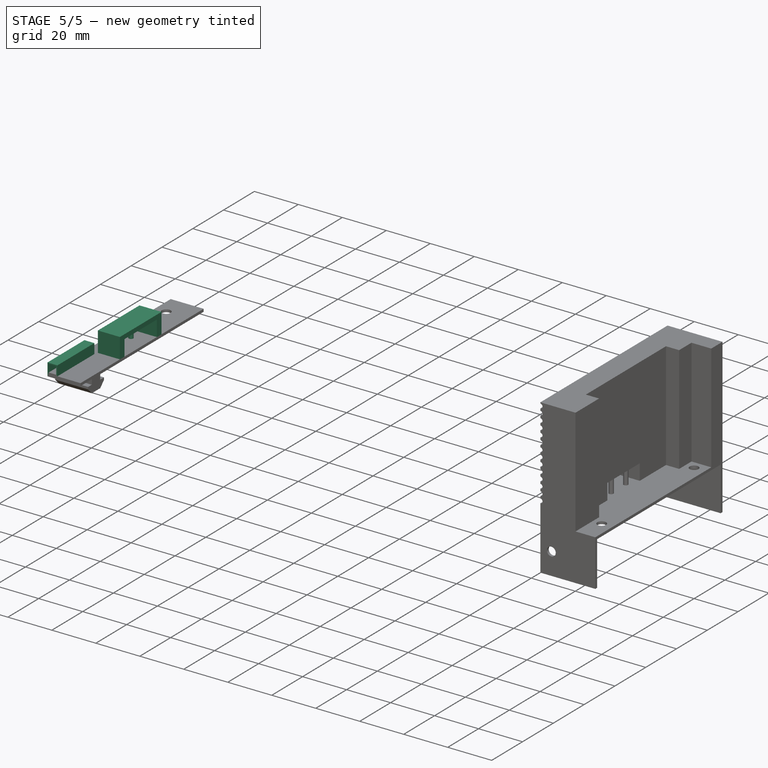
[diagram: stage 5 of 5 — iso view after this stage's code; geometry added in this stage tinted green]
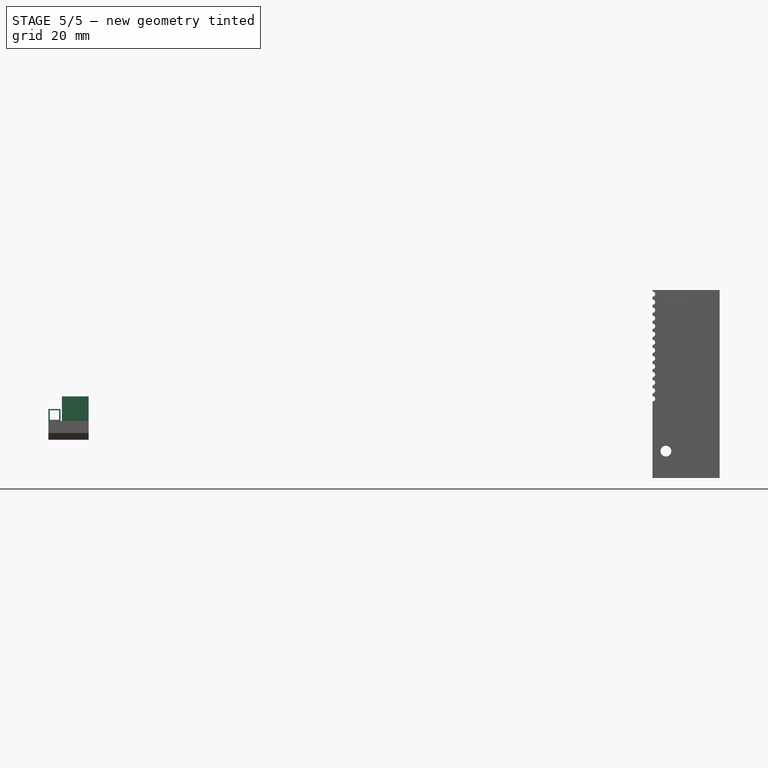
[diagram: stage 5 of 5 — front view after this stage's code; geometry added in this stage tinted green]
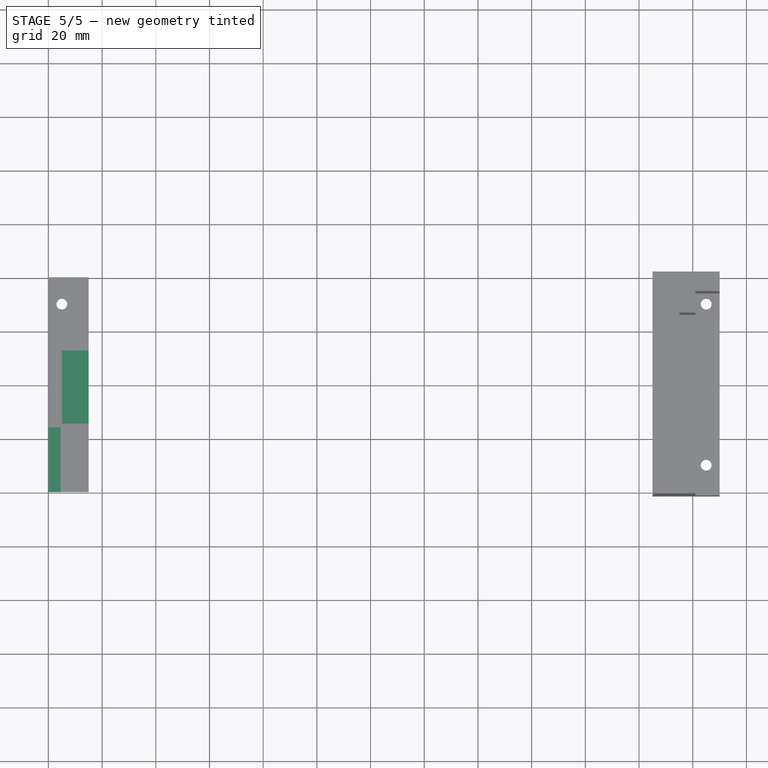
[diagram: stage 5 of 5 — top view after this stage's code; geometry added in this stage tinted green]
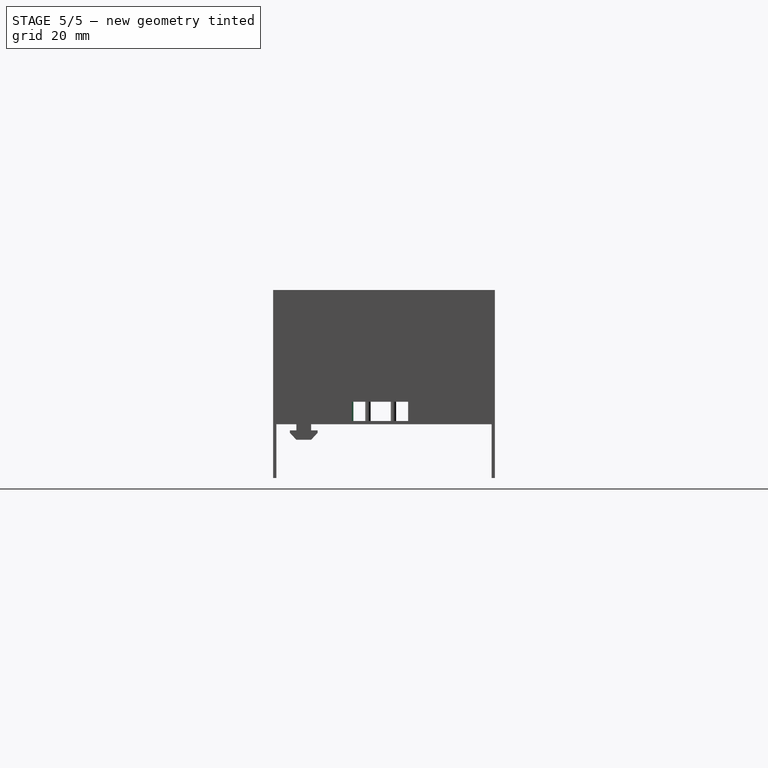
[diagram: stage 5 of 5 — right view after this stage's code; geometry added in this stage tinted green]
FEATURE [Sketcher::SketchObject] Sketch002
  ArcFitTolerance = 1e-06
  AttachmentSupport = -> [Pocket]
  FullyConstrained = true
  MakeInternals = false
  MapMode = 5
  Placement = pos=(-3e-16,5e-16,1.2) rot=(0,0,-1;1.5708rad)
FEATURE [Sketcher::SketchObject] Sketch003
  ArcFitTolerance = 1e-06
  AttachmentSupport = -> [Pocket]
  ExternalGeometry = -> [Pocket]
  FullyConstrained = true
  MakeInternals = false
  MapMode = 5
  Placement = pos=(-3e-16,5e-16,1.2) rot=(0,0,-1;1.5708rad)
  sketch-geometry (2):
    g0: Circle CenterX=-43.5 CenterY=7.5 CenterZ=0 NormalX=0 NormalY=0 NormalZ=1 AngleXU=0 Radius=1
    g1: Circle CenterX=-34 CenterY=7.5 CenterZ=0 NormalX=0 NormalY=0 NormalZ=1 AngleXU=0 Radius=1
  constraints (6):
    c: Horizontal(g0,g1)
    c: Diameter(g0) = 2
    c: Equal(g0,g1)
    c: DistanceX(g0,g1) = 9.5
    c: DistanceY(g-3,g0) = 7.5
    c: DistanceX(g-3,g0) = 36.5
FEATURE [PartDesign::Pad] Pad001
  BaseFeature = -> Pocket
  Direction = (0,0,1)
  Length = 9
  Length2 = 10
  Placement = pos=(0,0,0) rot=(1,1,1;2.0944rad)
  Profile = -> Sketch003
  ReferenceAxis = -> Sketch003 [N_Axis]
  Refine = true
  Suppressed = false
  Type = 0
FEATURE [Sketcher::SketchObject] Sketch004
  ArcFitTolerance = 1e-06
  AttachmentSupport = -> [XZ_Plane]
  ExternalGeometry = -> [Pad001]
  FullyConstrained = true
  MakeInternals = false
  MapMode = 5
  Placement = pos=(0,0,0) rot=(1,0,0;1.5708rad)
  sketch-geometry (8):
    g0: LineSegment StartX=-9e-16 StartY=1.2 StartZ=0 EndX=0 EndY=5.7 EndZ=0
    g1: LineSegment StartX=0 StartY=5.7 StartZ=0 EndX=4.5 EndY=5.7 EndZ=0
    g2: LineSegment StartX=4.5 StartY=5.7 StartZ=0 EndX=4.5 EndY=1.2 EndZ=0
    g3: LineSegment StartX=4.5 StartY=1.2 StartZ=0 EndX=-9e-16 EndY=1.2 EndZ=0
    g4: LineSegment StartX=0.5 StartY=1.7 StartZ=0 EndX=4 EndY=1.7 EndZ=0
    g5: LineSegment StartX=4 StartY=1.7 StartZ=0 EndX=4 EndY=5.2 EndZ=0
    g6: LineSegment StartX=4 StartY=5.2 StartZ=0 EndX=0.5 EndY=5.2 EndZ=0
    g7: LineSegment StartX=0.5 StartY=5.2 StartZ=0 EndX=0.5 EndY=1.7 EndZ=0
  constraints (23):
    c: Coincident(g0,g-3)
    c: PointOnObject(g0,g-2)
    c: Coincident(g0,g1)
    c: Horizontal(g1)
    c: Coincident(g1,g2)
    c: Vertical(g2)
    c: Coincident(g2,g3)
    c: Coincident(g3,g0)
    c: Horizontal(g3)
    c: Coincident(g4,g5)
    c: Coincident(g5,g6)
    c: Coincident(g6,g7)
    c: Coincident(g7,g4)
    c: Horizontal(g4)
    c: Horizontal(g6)
    c: Vertical(g5)
    c: Vertical(g7)
    c: DistanceY(g0,g4) = 0.5
    c: DistanceX(g0,g4) = 0.5
    c: DistanceX(g5,g1) = 0.5
    c: DistanceY(g5,g1) = 0.5
    c: DistanceX(g6,g6) = 3.5
    c: DistanceY(g7,g7) = 3.5
FEATURE [PartDesign::Pad] Pad002
  BaseFeature = -> Pad001
  Direction = (0,-1,2e-16)
  Length = 24
  Length2 = 10
  Placement = pos=(0,0,0) rot=(1,1,1;2.0944rad)
  Profile = -> Sketch004
  ReferenceAxis = -> Sketch004 [N_Axis]
  Refine = true
  Reversed = true
  Suppressed = false
  Type = 0
FEATURE [Sketcher::SketchObject] Sketch008
  ArcFitTolerance = 1e-06
  AttachmentSupport = -> [Pad002]
  ExternalGeometry = -> [Pad002]
  FullyConstrained = true
  MakeInternals = false
  MapMode = 5
  Placement = pos=(-5e-16,8e-16,1.2) rot=(0,0,-1;1.5708rad)
  sketch-geometry (8):
    g0: LineSegment StartX=-49.6 StartY=15 StartZ=0 EndX=-52.6 EndY=15 EndZ=0
    g1: LineSegment StartX=-52.6 StartY=15 StartZ=0 EndX=-52.6 EndY=5 EndZ=0
    g2: LineSegment StartX=-52.6 StartY=5 StartZ=0 EndX=-49.6 EndY=5 EndZ=0
    g3: LineSegment StartX=-49.6 StartY=5 StartZ=0 EndX=-49.6 EndY=15 EndZ=0
    g4: LineSegment StartX=-28.6 StartY=15 StartZ=0 EndX=-28.6 EndY=5 EndZ=0
    g5: LineSegment StartX=-28.6 StartY=5 StartZ=0 EndX=-25.6 EndY=5 EndZ=0
    g6: LineSegment StartX=-25.6 StartY=5 StartZ=0 EndX=-25.6 EndY=15 EndZ=0
    g7: LineSegment StartX=-25.6 StartY=15 StartZ=0 EndX=-28.6 EndY=15 EndZ=0
  constraints (24):
    c: Coincident(g0,g1)
    c: Coincident(g1,g2)
    c: Coincident(g2,g3)
    c: Coincident(g3,g0)
    c: Horizontal(g0)
    c: Horizontal(g2)
    c: Vertical(g1)
    c: Vertical(g3)
    c: Distance(g1,g3) = 3
    c: Distance(g0,g2) = 10
    c: PointOnObject(g0,g-3)
    c: Coincident(g4,g5)
    c: Coincident(g5,g6)
    c: Coincident(g6,g7)
    c: Coincident(g7,g4)
    c: Vertical(g4)
    c: Vertical(g6)
    c: Horizontal(g5)
    c: Horizontal(g7)
    c: Distance(g4,g6) = 3
    c: Distance(g5,g7) = 10
    c: PointOnObject(g4,g-3)
    c: DistanceX(g6,g-3) = 25.6
    c: DistanceX(g0,g4) = 21
FEATURE [PartDesign::Pad] Pad005
  BaseFeature = -> Pad002
  Direction = (-1.1e-15,0,1)
  Length = 7.2
  Length2 = 10
  Placement = pos=(0,0,0) rot=(1,1,1;2.0944rad)
  Profile = -> Sketch008
  ReferenceAxis = -> Sketch008 [N_Axis]
  Refine = true
  Suppressed = false
  Type = 0
FEATURE [Sketcher::SketchObject] Sketch009
  ArcFitTolerance = 1e-06
  AttachmentSupport = -> [Pad005]
  ExternalGeometry = -> [Pad005]
  FullyConstrained = true
  MakeInternals = false
  MapMode = 5
  Placement = pos=(-1.03e-14,9e-16,8.4) rot=(0,0,-1;1.5708rad)
  sketch-geometry (4):
    g0: LineSegment StartX=-52.6 StartY=15 StartZ=0 EndX=-52.6 EndY=5 EndZ=0
    g1: LineSegment StartX=-52.6 StartY=5 StartZ=0 EndX=-25.6 EndY=5 EndZ=0
    g2: LineSegment StartX=-25.6 StartY=5 StartZ=0 EndX=-25.6 EndY=15 EndZ=0
    g3: LineSegment StartX=-25.6 StartY=15 StartZ=0 EndX=-52.6 EndY=15 EndZ=0
  constraints (10):
    c: Coincident(g0,g1)
    c: Coincident(g1,g2)
    c: Coincident(g2,g3)
    c: Coincident(g3,g0)
    c: Vertical(g0)
    c: Vertical(g2)
    c: Horizontal(g1)
    c: Horizontal(g3)
    c: Coincident(g0,g-3)
    c: Coincident(g1,g-4)
FEATURE [PartDesign::Pad] Pad006
  BaseFeature = -> Pad005
  Direction = (-1.4e-15,0,1)
  Length = 2
  Length2 = 10
  Placement = pos=(0,0,0) rot=(1,1,1;2.0944rad)
  Profile = -> Sketch009
  ReferenceAxis = -> Sketch009 [N_Axis]
  Refine = true
  Suppressed = false
  Type = 0
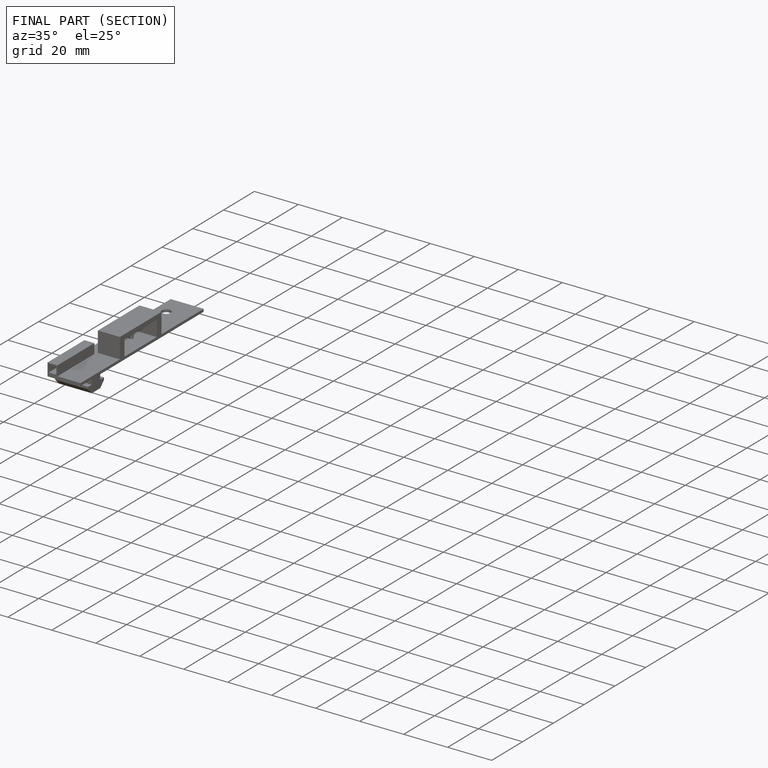
[diagram: finished part — half-section view (interior)]
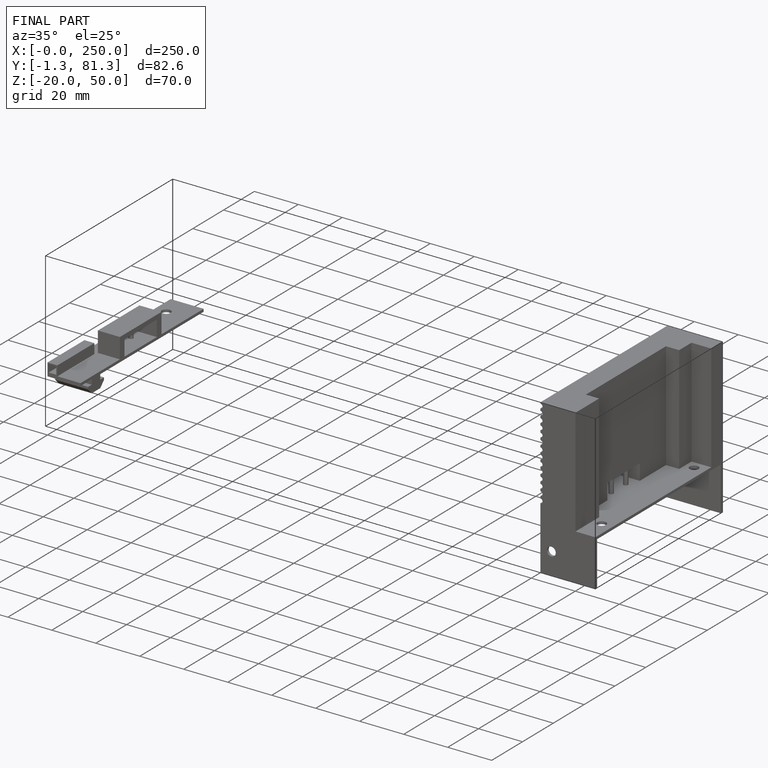
[diagram: finished part — iso view with bounding-box wireframe]
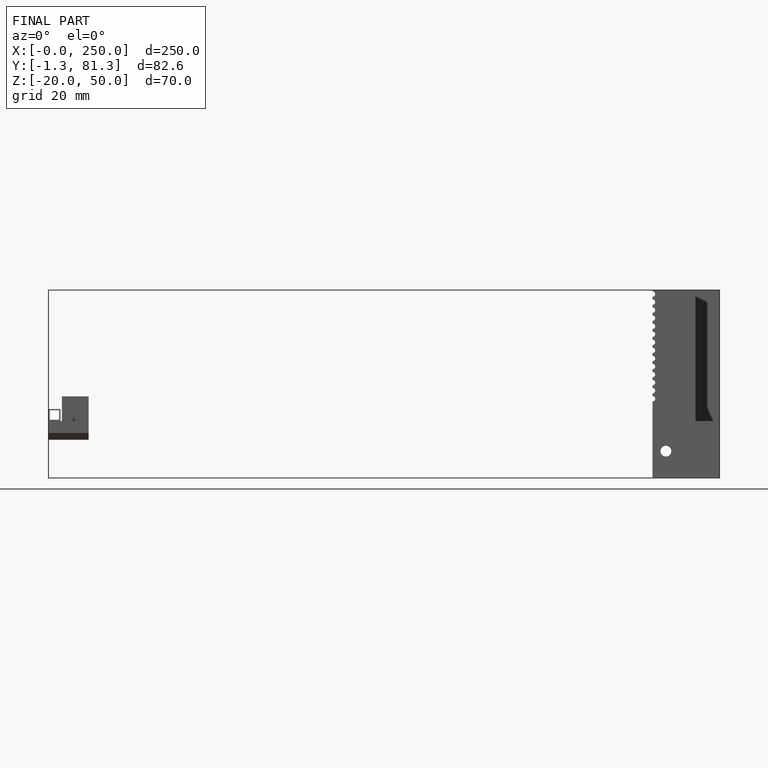
[diagram: finished part — front view with bounding-box wireframe]
